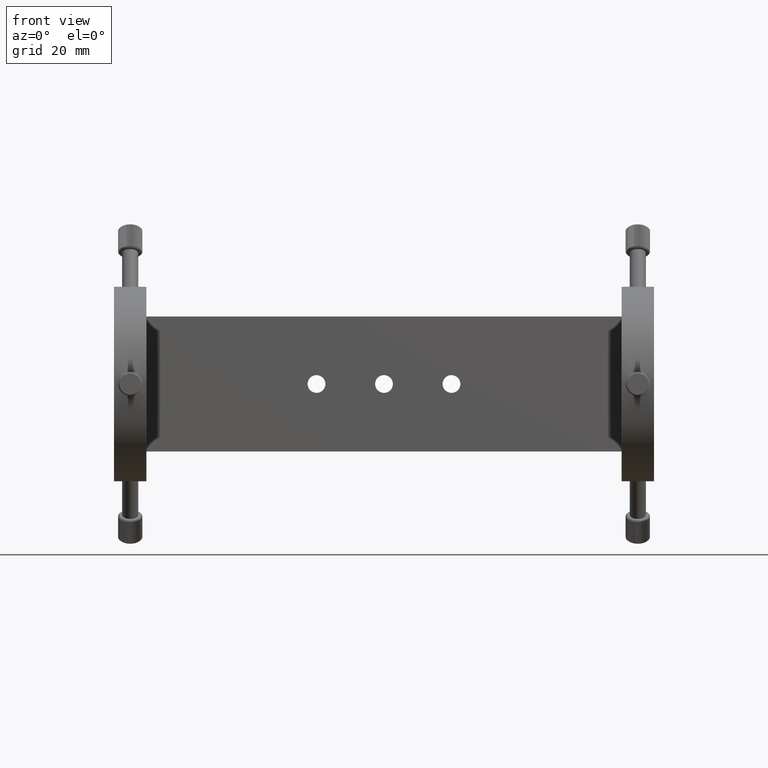
[diagram: clean part render]
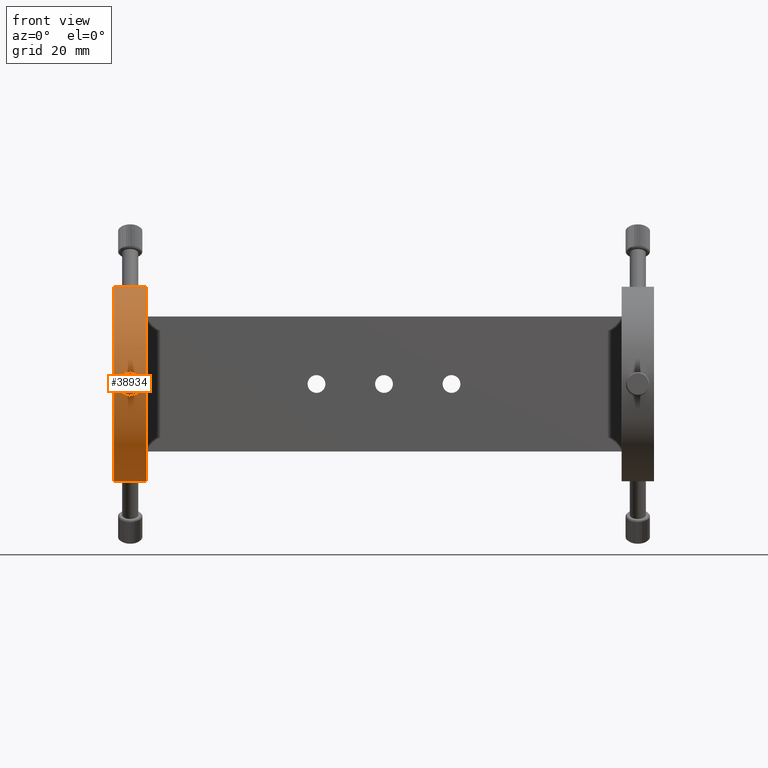
[diagram: same view with one face highlighted and labeled with its STEP entity id]
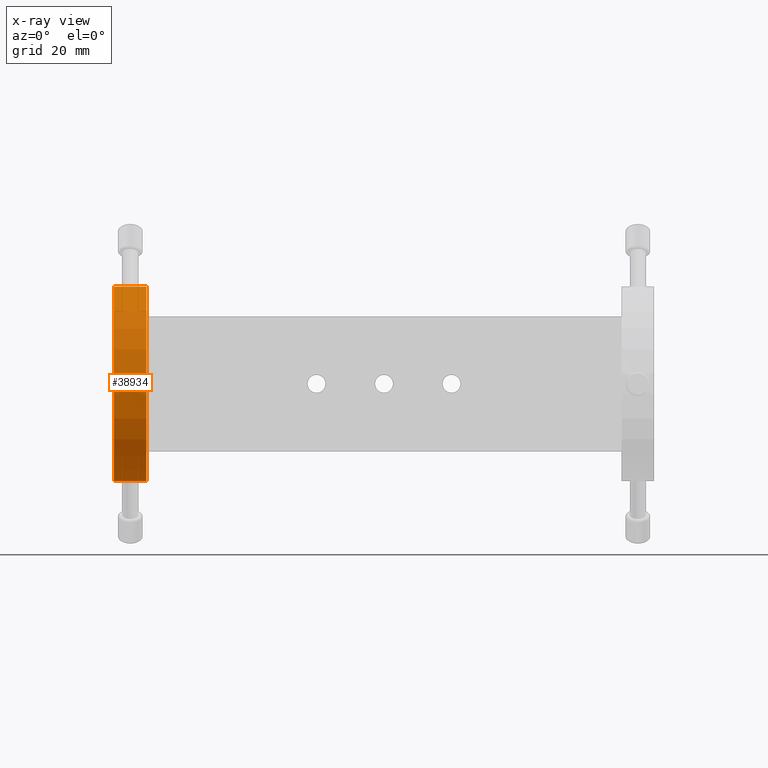
[diagram: x-ray of the same camera — body ghosted, the highlighted face saturated]
A machine part, front view. The second image highlights one B-rep face of the part: STEP entity #38934.
The next image is the same camera in x-ray: the body ghosted, the highlighted face saturated — about 0% of this face is hidden behind the body in this view.
In plain terms, the highlighted cylindrical surface (partial cylindrical patch) has radius 36 mm, axis along (1, 0, 0).
Its self-contained STEP definition (entity closure, byte-faithful):
#27 = VERTEX_POINT ( 'NONE', #30805 ) ;
#841 = CARTESIAN_POINT ( 'NONE',  ( -95.46326199725137900, -88.89142123570968600, -1.252463694351972700 ) ) ;
#996 = CARTESIAN_POINT ( 'NONE',  ( -98.28164798082774200, -88.83154586218927300, -2.419930633638371900 ) ) ;
#1165 = CARTESIAN_POINT ( 'NONE',  ( -97.30679177677909300, -88.82716696889042400, -2.484073899411177500 ) ) ;
#1337 = CARTESIAN_POINT ( 'NONE',  ( -98.88661353179441000, -88.84766369865556600, -2.169132977666578600 ) ) ;
#1408 = CARTESIAN_POINT ( 'NONE',  ( -103.6330608537692100, -52.91295791704511900, -36.00000000000001400 ) ) ;
#1496 = CARTESIAN_POINT ( 'NONE',  ( -99.28374135792495300, -88.86377367074160800, -1.884806156109611900 ) ) ;
#1501 = DIRECTION ( 'NONE',  ( 1.156482317317870500E-015, -5.782411586589352700E-016, -1.000000000000000000 ) ) ;
#2003 = CARTESIAN_POINT ( 'NONE',  ( -91.63306085376920900, -52.91295791704509800, 3.408384685599232500E-014 ) ) ;
#2642 = EDGE_CURVE ( 'NONE', #46334, #27, #11245, .T. ) ;
#3032 = CARTESIAN_POINT ( 'NONE',  ( -103.6330608537692500, -52.91295791704509800, 2.142730437526551800E-014 ) ) ;
#3190 = DIRECTION ( 'NONE',  ( 1.156482317317870500E-015, -5.782411586589352700E-016, -1.000000000000000000 ) ) ;
#4028 = ORIENTED_EDGE ( 'NONE', *, *, #44869, .F. ) ;
#4840 = CARTESIAN_POINT ( 'NONE',  ( -99.62071158807447100, -88.88089625636448000, -1.525045719898535000 ) ) ;
#4992 = CARTESIAN_POINT ( 'NONE',  ( -95.98093841223448000, -88.86384445498950400, -1.883368583144509700 ) ) ;
#5720 = CARTESIAN_POINT ( 'NONE',  ( -96.11066910569252300, -88.85804454309635500, 1.989716628330995300 ) ) ;
#5881 = CARTESIAN_POINT ( 'NONE',  ( -95.64762039584715600, -88.88077197806137500, 1.528065071999652700 ) ) ;
#6647 = DIRECTION ( 'NONE',  ( -1.000000000000000000, -3.427476219765679400E-016, -1.054711873393897900E-015 ) ) ;
#7831 = B_SPLINE_CURVE_WITH_KNOTS ( 'NONE', 3,
 ( #12026, #12352, #42616, #34555, #35212, #34731, #841, #19863, #12656, #4992, #8749, #35045, #23685, #15954, #27325, #1165, #8596, #12183, #15776, #996, #27672, #46219, #1337, #27835, #1496, #42779, #4840, #31119, #38636, #20039, #42117, #19543, #34890, #42463 ),
 .UNSPECIFIED., .F., .F.,
 ( 4, 2, 2, 2, 2, 2, 2, 2, 2, 2, 2, 2, 2, 2, 2, 2, 4 ),
 ( 2.523894446711650500E-020, 0.0004886557414019543200, 0.0009773114828039086400, 0.001465967224205863000, 0.001954622965607817300, 0.002443278707009771600, 0.002931934448411725900, 0.003420590189813680200, 0.003909245931215634500, 0.004397901672617589300, 0.004886557414019543200, 0.005375213155421497100, 0.005863868896823451800, 0.006352524638225406600, 0.006841180379627360500, 0.007329836121029314300, 0.007818491862431269100 ),
 .UNSPECIFIED. ) ;
#7877 = B_SPLINE_CURVE_WITH_KNOTS ( 'NONE', 3,
 ( #23616, #27412, #31379, #31220, #38730, #23767, #27593, #8847, #20777, #43533, #32346, #20611, #13555, #35964, #13378, #39704, #46978, #32030, #17165, #43203, #9650, #5720, #20923, #21099, #5881, #35628, #20435, #13067, #43055, #9494 ),
 .UNSPECIFIED., .F., .F.,
 ( 4, 2, 2, 2, 2, 2, 2, 2, 2, 2, 2, 2, 2, 2, 4 ),
 ( 0.007818491862431269100, 0.008307035235726482500, 0.008795578609021697700, 0.009772665355612109000, 0.01026120872890730200, 0.01074975210220249400, 0.01123829547549768500, 0.01172683884879287600, 0.01221538222208807000, 0.01270392559538326100, 0.01319246896867845200, 0.01368101234197364300, 0.01416955571526883600, 0.01465809908856402700, 0.01563518583515442800 ),
 .UNSPECIFIED. ) ;
#8029 = AXIS2_PLACEMENT_3D ( 'NONE', #3032, #14317, #40662 ) ;
#8596 = CARTESIAN_POINT ( 'NONE',  ( -97.46905125231741400, -88.82605153409088000, -2.499941370660845300 ) ) ;
#8749 = CARTESIAN_POINT ( 'NONE',  ( -96.10678970526058200, -88.85820595355859600, -1.986836990803406500 ) ) ;
#8847 = CARTESIAN_POINT ( 'NONE',  ( -99.28690792723779200, -88.86392427792401300, 1.881846646252571800 ) ) ;
#9415 = EDGE_CURVE ( 'NONE', #34926, #31959, #41490, .T. ) ;
#9494 = CARTESIAN_POINT ( 'NONE',  ( -95.13306085376923700, -88.91295791704509100, 4.962117467692161600E-014 ) ) ;
#9650 = CARTESIAN_POINT ( 'NONE',  ( -96.38234202449754700, -88.84756343191908500, 2.170795086085777200 ) ) ;
#11245 = LINE ( 'NONE', #1408, #41267 ) ;
#11364 = EDGE_CURVE ( 'NONE', #41385, #23641, #7831, .T. ) ;
#11697 = CARTESIAN_POINT ( 'NONE',  ( -91.63306085376925100, -52.91295791704507700, 36.00000000000002800 ) ) ;
#12026 = CARTESIAN_POINT ( 'NONE',  ( -95.13306085376923700, -88.91295791704509100, 4.962117467692161600E-014 ) ) ;
#12183 = CARTESIAN_POINT ( 'NONE',  ( -97.79527818371148800, -88.82604339378268300, -2.500058308115316500 ) ) ;
#12352 = CARTESIAN_POINT ( 'NONE',  ( -95.13306085376925100, -88.91295791704509100, -0.1652343075596712200 ) ) ;
#12406 = EDGE_LOOP ( 'NONE', ( #4028, #42221, #13436, #16862 ) ) ;
#12656 = CARTESIAN_POINT ( 'NONE',  ( -95.75030599598363800, -88.87518115417057600, -1.652821807480533000 ) ) ;
#13067 = CARTESIAN_POINT ( 'NONE',  ( -95.19949834745666800, -88.90818928583595900, 0.6586249403062688400 ) ) ;
#13378 = CARTESIAN_POINT ( 'NONE',  ( -97.80006111288204800, -88.82605678254680000, 2.499865975313894300 ) ) ;
#13436 = ORIENTED_EDGE ( 'NONE', *, *, #21031, .T. ) ;
#13555 = CARTESIAN_POINT ( 'NONE',  ( -98.28194959215792900, -88.83155382613154000, 2.419811711218544700 ) ) ;
#14317 = DIRECTION ( 'NONE',  ( 1.000000000000000000, 3.427476219765679400E-016, 1.054711873393897900E-015 ) ) ;
#15231 = FACE_BOUND ( 'NONE', #27546, .T. ) ;
#15461 = ORIENTED_EDGE ( 'NONE', *, *, #11364, .T. ) ;
#15776 = CARTESIAN_POINT ( 'NONE',  ( -97.96096097213015200, -88.82718647898542500, -2.483789654013858400 ) ) ;
#15934 = CARTESIAN_POINT ( 'NONE',  ( -95.13306085376923700, -88.91295791704509100, 4.962117467692161600E-014 ) ) ;
#15954 = CARTESIAN_POINT ( 'NONE',  ( -96.82641684037585600, -88.83479059618088100, -2.371885060027160800 ) ) ;
#16026 = DIRECTION ( 'NONE',  ( 1.000000000000000000, 3.427476219765679400E-016, 1.054711873393897900E-015 ) ) ;
#16862 = ORIENTED_EDGE ( 'NONE', *, *, #9415, .F. ) ;
#17165 = CARTESIAN_POINT ( 'NONE',  ( -96.82903483439488900, -88.83472724966657100, 2.372853313274007700 ) ) ;
#19543 = CARTESIAN_POINT ( 'NONE',  ( -100.1167067172631400, -88.91181178230397100, -0.3289320257054547700 ) ) ;
#19863 = CARTESIAN_POINT ( 'NONE',  ( -95.64472054960863500, -88.88093385203338000, -1.524203142060273300 ) ) ;
#20039 = CARTESIAN_POINT ( 'NONE',  ( -100.0054999744556900, -88.90427003297490700, -0.8052380656970612400 ) ) ;
#20435 = CARTESIAN_POINT ( 'NONE',  ( -95.38690483256864600, -88.89616692592504400, 1.109633475277035400 ) ) ;
#20611 = CARTESIAN_POINT ( 'NONE',  ( -98.44086785009406500, -88.83481355326655700, 2.371549571165759900 ) ) ;
#20652 = CARTESIAN_POINT ( 'NONE',  ( -103.6330608537692900, -52.91295791704507700, 36.00000000000002100 ) ) ;
#20777 = CARTESIAN_POINT ( 'NONE',  ( -99.15843680505273000, -88.85817099047861200, 1.987444353118214000 ) ) ;
#20923 = CARTESIAN_POINT ( 'NONE',  ( -95.98193943390238300, -88.86379819382044300, 1.884249345080914400 ) ) ;
#21031 = EDGE_CURVE ( 'NONE', #27, #31959, #26170, .T. ) ;
#21099 = CARTESIAN_POINT ( 'NONE',  ( -95.75113664929426700, -88.87513740292247600, 1.653771092440564600 ) ) ;
#23616 = CARTESIAN_POINT ( 'NONE',  ( -100.1330608537692200, -88.91295791704509100, 4.401548145759732600E-014 ) ) ;
#23641 = VERTEX_POINT ( 'NONE', #27449 ) ;
#23685 = CARTESIAN_POINT ( 'NONE',  ( -96.52556740805813700, -88.84280526149920800, -2.247214179830316000 ) ) ;
#23767 = CARTESIAN_POINT ( 'NONE',  ( -99.81848810403231200, -88.89226653774055400, 1.256955011885079900 ) ) ;
#25432 = EDGE_CURVE ( 'NONE', #23641, #41385, #7877, .T. ) ;
#26170 = CIRCLE ( 'NONE', #48742, 36.00000000000002800 ) ;
#27325 = CARTESIAN_POINT ( 'NONE',  ( -96.98402565613542900, -88.83154930085102300, -2.419881807148502400 ) ) ;
#27412 = CARTESIAN_POINT ( 'NONE',  ( -100.1330608537692100, -88.91295791704509100, 0.1631498488893801100 ) ) ;
#27449 = CARTESIAN_POINT ( 'NONE',  ( -100.1330608537692200, -88.91295791704509100, 4.401548145759732600E-014 ) ) ;
#27546 = EDGE_LOOP ( 'NONE', ( #15461, #45737 ) ) ;
#27593 = CARTESIAN_POINT ( 'NONE',  ( -99.63236358080368400, -88.88092004932119000, 1.535908973670828700 ) ) ;
#27672 = CARTESIAN_POINT ( 'NONE',  ( -98.43751860994162000, -88.83473758383337300, -2.372695679454850800 ) ) ;
#27835 = CARTESIAN_POINT ( 'NONE',  ( -99.15747956400404900, -88.85813197001692700, -1.988134750782963400 ) ) ;
#28438 = CARTESIAN_POINT ( 'NONE',  ( -103.6330608537692900, -52.91295791704507700, 36.00000000000005000 ) ) ;
#30805 = CARTESIAN_POINT ( 'NONE',  ( -91.63306085376916600, -52.91295791704511900, -35.99999999999996400 ) ) ;
#31119 = CARTESIAN_POINT ( 'NONE',  ( -99.80175753139911900, -88.89135529962817400, -1.254302439526535600 ) ) ;
#31220 = CARTESIAN_POINT ( 'NONE',  ( -100.0532816355337800, -88.90749153796285500, 0.6477169415382546500 ) ) ;
#31379 = CARTESIAN_POINT ( 'NONE',  ( -100.1172438621989500, -88.91184883293675500, 0.3253315992489510000 ) ) ;
#31959 = VERTEX_POINT ( 'NONE', #11697 ) ;
#32030 = CARTESIAN_POINT ( 'NONE',  ( -96.98762231799946700, -88.83149171407508500, 2.420730398038476200 ) ) ;
#32346 = CARTESIAN_POINT ( 'NONE',  ( -98.74323239672756400, -88.84288473385088000, 2.245956067471806000 ) ) ;
#34259 = CARTESIAN_POINT ( 'NONE',  ( -103.6330608537692100, -52.91295791704511900, -35.99999999999997900 ) ) ;
#34555 = CARTESIAN_POINT ( 'NONE',  ( -95.21282585693461400, -88.90749267773378500, -0.6473099060676562600 ) ) ;
#34731 = CARTESIAN_POINT ( 'NONE',  ( -95.38645348654712600, -88.89619459137163900, -1.108877969106784900 ) ) ;
#34890 = CARTESIAN_POINT ( 'NONE',  ( -100.1330608537692200, -88.91295791704509100, -0.1631873744001073000 ) ) ;
#34926 = VERTEX_POINT ( 'NONE', #20652 ) ;
#35045 = CARTESIAN_POINT ( 'NONE',  ( -96.38010367196352500, -88.84763830364582300, -2.169590548319231700 ) ) ;
#35212 = CARTESIAN_POINT ( 'NONE',  ( -95.26092541593425300, -88.90424996711708200, -0.8061193940071292900 ) ) ;
#35628 = CARTESIAN_POINT ( 'NONE',  ( -95.46482732542091300, -88.89132518335304700, 1.255276878925692500 ) ) ;
#35964 = CARTESIAN_POINT ( 'NONE',  ( -97.96239209206558500, -88.82720209049180900, 2.483563216034623700 ) ) ;
#38636 = CARTESIAN_POINT ( 'NONE',  ( -99.88002858564510700, -88.89621714175963500, -1.108156909340727300 ) ) ;
#38730 = CARTESIAN_POINT ( 'NONE',  ( -100.0052807790141100, -88.90425640033119200, 0.8056548071568737600 ) ) ;
#38934 = ADVANCED_FACE ( 'NONE', ( #15231, #47022 ), #41114, .T. ) ;
#39123 = DIRECTION ( 'NONE',  ( -1.000000000000000000, -3.427476219765679400E-016, -1.054711873393897900E-015 ) ) ;
#39704 = CARTESIAN_POINT ( 'NONE',  ( -97.47009770078429400, -88.82603823642159600, 2.500132394863326700 ) ) ;
#40662 = DIRECTION ( 'NONE',  ( -1.156482317317870500E-015, 5.782411586589352700E-016, 1.000000000000000000 ) ) ;
#41114 = CYLINDRICAL_SURFACE ( 'NONE', #8029, 36.00000000000002800 ) ;
#41267 = VECTOR ( 'NONE', #16026, 1000.000000000000000 ) ;
#41385 = VERTEX_POINT ( 'NONE', #15934 ) ;
#41490 = LINE ( 'NONE', #28438, #45635 ) ;
#42117 = CARTESIAN_POINT ( 'NONE',  ( -100.0527722709614100, -88.90745730486132500, -0.6493764010917255600 ) ) ;
#42221 = ORIENTED_EDGE ( 'NONE', *, *, #2642, .T. ) ;
#42463 = CARTESIAN_POINT ( 'NONE',  ( -100.1330608537692200, -88.91295791704509100, 4.401548145759732600E-014 ) ) ;
#42571 = CIRCLE ( 'NONE', #44404, 36.00000000000002800 ) ;
#42616 = CARTESIAN_POINT ( 'NONE',  ( -95.14928105413058300, -88.91182119481565800, -0.3276972097888330400 ) ) ;
#42779 = CARTESIAN_POINT ( 'NONE',  ( -99.51719963564605100, -88.87524908680799700, -1.651442225309802200 ) ) ;
#43055 = CARTESIAN_POINT ( 'NONE',  ( -95.13306085376928000, -88.91295791704510500, 0.3303926226989018500 ) ) ;
#43203 = CARTESIAN_POINT ( 'NONE',  ( -96.52596983461570800, -88.84278820708300400, 2.247496420788259700 ) ) ;
#43533 = CARTESIAN_POINT ( 'NONE',  ( -98.88672750101254400, -88.84766608566937400, 2.169107371036578200 ) ) ;
#44404 = AXIS2_PLACEMENT_3D ( 'NONE', #48069, #6647, #3190 ) ;
#44506 = DIRECTION ( 'NONE',  ( 1.000000000000000000, 3.427476219765679400E-016, 1.054711873393897900E-015 ) ) ;
#44869 = EDGE_CURVE ( 'NONE', #46334, #34926, #42571, .T. ) ;
#45635 = VECTOR ( 'NONE', #44506, 1000.000000000000000 ) ;
#45737 = ORIENTED_EDGE ( 'NONE', *, *, #25432, .T. ) ;
#46219 = CARTESIAN_POINT ( 'NONE',  ( -98.74026650657137300, -88.84279240741554400, -2.247428021355212900 ) ) ;
#46334 = VERTEX_POINT ( 'NONE', #34259 ) ;
#46978 = CARTESIAN_POINT ( 'NONE',  ( -97.30715599358704500, -88.82717088632540500, 2.484011389980676400 ) ) ;
#47022 = FACE_OUTER_BOUND ( 'NONE', #12406, .T. ) ;
#48069 = CARTESIAN_POINT ( 'NONE',  ( -103.6330608537692500, -52.91295791704509800, 2.142730437526551800E-014 ) ) ;
#48742 = AXIS2_PLACEMENT_3D ( 'NONE', #2003, #39123, #1501 ) ;